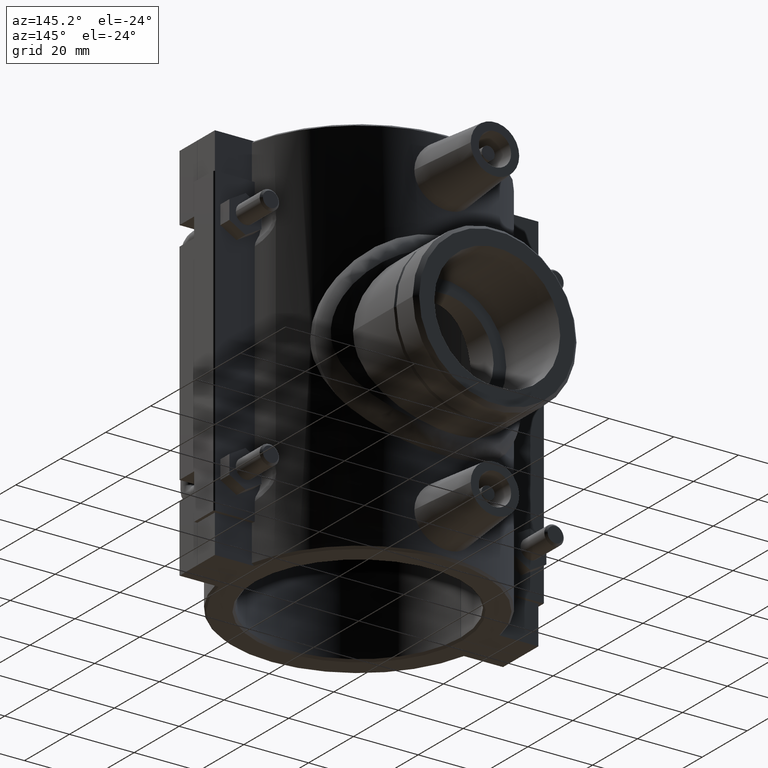
[diagram: clean part render]
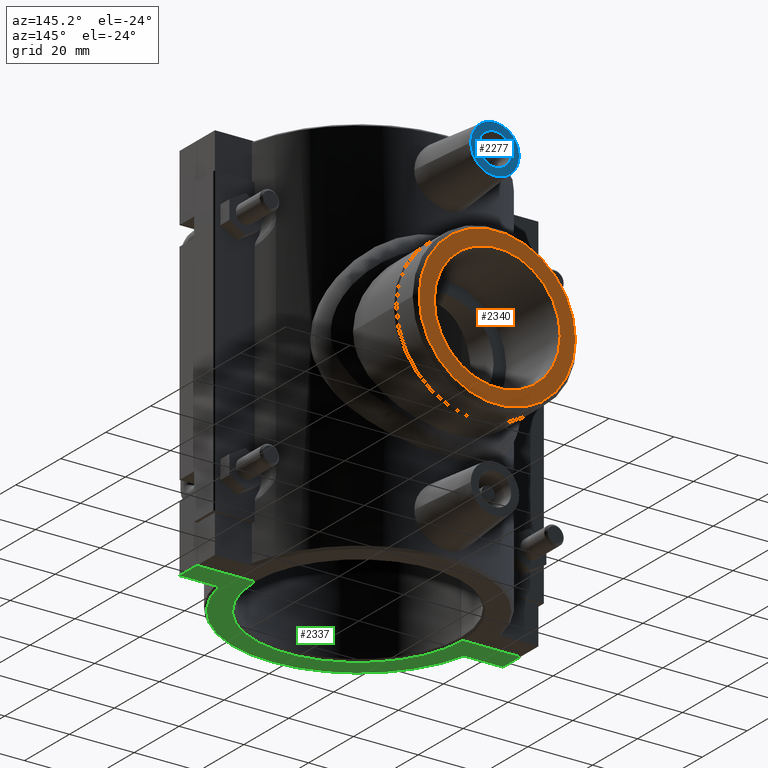
[diagram: same view with three faces highlighted in distinct colors, each labeled with its STEP entity id]
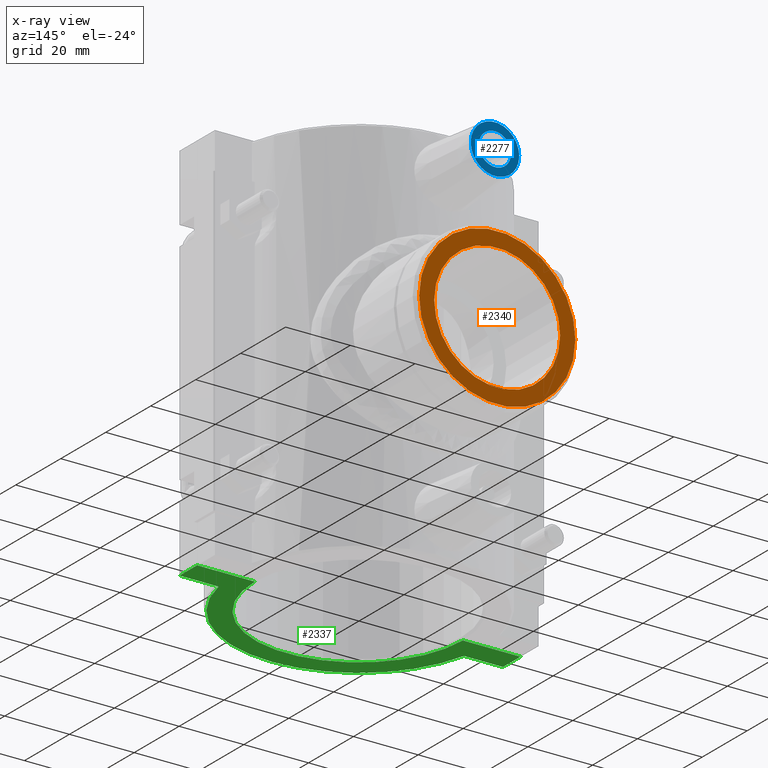
[diagram: x-ray of the same camera — body ghosted, the three highlighted faces saturated]
A machine part, auxiliary view with three faces highlighted in distinct colors.
The next image is the same camera in x-ray (body ghosted, the three faces saturated) — at least one of them is partly hidden behind the body in this view.
Their STEP definitions:

[orange] entity #2340 — the highlighted planar face has unit normal (0, 1, 0).
#125=FACE_BOUND('',#453,.T.);
#276=FACE_OUTER_BOUND('',#452,.T.);
#452=EDGE_LOOP('',(#1988));
#453=EDGE_LOOP('',(#1989));
#946=CIRCLE('',#2533,24.15024);
#949=CIRCLE('',#2538,19.476);
#1151=VERTEX_POINT('',#4292);
#1154=VERTEX_POINT('',#4300);
#1447=EDGE_CURVE('',#1151,#1151,#946,.T.);
#1450=EDGE_CURVE('',#1154,#1154,#949,.T.);
#1988=ORIENTED_EDGE('',*,*,#1447,.F.);
#1989=ORIENTED_EDGE('',*,*,#1450,.T.);
#2221=PLANE('',#2537);
#2340=ADVANCED_FACE('',(#276,#125),#2221,.T.);
#2533=AXIS2_PLACEMENT_3D('',#4293,#3058,#3059);
#2537=AXIS2_PLACEMENT_3D('',#4299,#3066,#3067);
#2538=AXIS2_PLACEMENT_3D('',#4301,#3068,#3069);
#3058=DIRECTION('center_axis',(0.,-1.,0.));
#3059=DIRECTION('ref_axis',(1.,0.,0.));
#3066=DIRECTION('center_axis',(0.,1.,0.));
#3067=DIRECTION('ref_axis',(0.,0.,1.));
#3068=DIRECTION('center_axis',(0.,-1.,0.));
#3069=DIRECTION('ref_axis',(-1.,0.,0.));
#4292=CARTESIAN_POINT('',(-24.15024,61.5,-2.95755141146404E-15));
#4293=CARTESIAN_POINT('Origin',(0.,61.5,0.));
#4299=CARTESIAN_POINT('Origin',(1.4277148677771E-15,61.5,5.84663319812501E-16));
#4300=CARTESIAN_POINT('',(19.476,61.5,-2.38512210601939E-15));
#4301=CARTESIAN_POINT('Origin',(0.,61.5,0.));

[blue] entity #2277 — the highlighted planar face has unit normal (0, -1, 0).
#99=FACE_BOUND('',#364,.T.);
#213=FACE_OUTER_BOUND('',#363,.T.);
#363=EDGE_LOOP('',(#1693));
#364=EDGE_LOOP('',(#1694));
#903=CIRCLE('',#2429,5.);
#904=CIRCLE('',#2432,7.5);
#1063=VERTEX_POINT('',#3689);
#1064=VERTEX_POINT('',#3693);
#1313=EDGE_CURVE('',#1063,#1063,#903,.T.);
#1314=EDGE_CURVE('',#1064,#1064,#904,.T.);
#1693=ORIENTED_EDGE('',*,*,#1314,.T.);
#1694=ORIENTED_EDGE('',*,*,#1313,.T.);
#2185=PLANE('',#2433);
#2277=ADVANCED_FACE('',(#213,#99),#2185,.F.);
#2429=AXIS2_PLACEMENT_3D('',#3690,#2783,#2784);
#2432=AXIS2_PLACEMENT_3D('',#3694,#2789,#2790);
#2433=AXIS2_PLACEMENT_3D('',#3730,#2791,#2792);
#2783=DIRECTION('center_axis',(0.,-1.,0.));
#2784=DIRECTION('ref_axis',(-1.,0.,0.));
#2789=DIRECTION('center_axis',(0.,1.,0.));
#2790=DIRECTION('ref_axis',(1.,0.,0.));
#2791=DIRECTION('center_axis',(0.,-1.,0.));
#2792=DIRECTION('ref_axis',(0.,0.,-1.));
#3689=CARTESIAN_POINT('',(5.,60.5,47.2));
#3690=CARTESIAN_POINT('Origin',(0.,60.5,47.2));
#3693=CARTESIAN_POINT('',(-7.5,60.5,47.2));
#3694=CARTESIAN_POINT('Origin',(0.,60.5,47.2));
#3730=CARTESIAN_POINT('Origin',(7.65404249467095E-17,60.5,47.2));

[green] entity #2337 — the highlighted planar face has unit normal (0, 0, 1).
#273=FACE_OUTER_BOUND('',#447,.T.);
#447=EDGE_LOOP('',(#1976,#1977,#1978,#1979,#1980,#1981,#1982,#1983));
#638=LINE('',#4040,#829);
#643=LINE('',#4057,#834);
#667=LINE('',#4256,#858);
#668=LINE('',#4287,#859);
#669=LINE('',#4289,#860);
#670=LINE('',#4290,#861);
#829=VECTOR('',#2935,12.063745572342);
#834=VECTOR('',#2942,7.825);
#858=VECTOR('',#3028,17.8700389044742);
#859=VECTOR('',#3053,17.8700389044742);
#860=VECTOR('',#3054,7.82500000000001);
#861=VECTOR('',#3055,12.063745572342);
#941=CIRCLE('',#2523,38.745);
#944=CIRCLE('',#2529,32.13);
#1111=VERTEX_POINT('',#4037);
#1112=VERTEX_POINT('',#4039);
#1117=VERTEX_POINT('',#4055);
#1143=VERTEX_POINT('',#4252);
#1144=VERTEX_POINT('',#4260);
#1148=VERTEX_POINT('',#4279);
#1149=VERTEX_POINT('',#4286);
#1150=VERTEX_POINT('',#4288);
#1382=EDGE_CURVE('',#1111,#1112,#638,.T.);
#1389=EDGE_CURVE('',#1111,#1117,#643,.T.);
#1433=EDGE_CURVE('',#1117,#1143,#667,.T.);
#1436=EDGE_CURVE('',#1112,#1144,#941,.T.);
#1442=EDGE_CURVE('',#1148,#1143,#944,.T.);
#1444=EDGE_CURVE('',#1148,#1149,#668,.T.);
#1445=EDGE_CURVE('',#1149,#1150,#669,.T.);
#1446=EDGE_CURVE('',#1150,#1144,#670,.T.);
#1976=ORIENTED_EDGE('',*,*,#1382,.F.);
#1977=ORIENTED_EDGE('',*,*,#1389,.T.);
#1978=ORIENTED_EDGE('',*,*,#1433,.T.);
#1979=ORIENTED_EDGE('',*,*,#1442,.F.);
#1980=ORIENTED_EDGE('',*,*,#1444,.T.);
#1981=ORIENTED_EDGE('',*,*,#1445,.T.);
#1982=ORIENTED_EDGE('',*,*,#1446,.T.);
#1983=ORIENTED_EDGE('',*,*,#1436,.F.);
#2220=PLANE('',#2531);
#2337=ADVANCED_FACE('',(#273),#2220,.F.);
#2523=AXIS2_PLACEMENT_3D('',#4264,#3035,#3036);
#2529=AXIS2_PLACEMENT_3D('',#4283,#3047,#3048);
#2531=AXIS2_PLACEMENT_3D('',#4285,#3051,#3052);
#2935=DIRECTION('',(1.,0.,0.));
#2942=DIRECTION('',(0.,1.,0.));
#3028=DIRECTION('',(1.,0.,0.));
#3035=DIRECTION('center_axis',(0.,0.,1.));
#3036=DIRECTION('ref_axis',(1.,0.,0.));
#3047=DIRECTION('center_axis',(0.,0.,-1.));
#3048=DIRECTION('ref_axis',(-1.,0.,0.));
#3051=DIRECTION('center_axis',(0.,0.,1.));
#3052=DIRECTION('ref_axis',(1.,0.,0.));
#3053=DIRECTION('',(1.,0.,0.));
#3054=DIRECTION('',(0.,-1.,0.));
#3055=DIRECTION('',(-1.,0.,0.));
#4037=CARTESIAN_POINT('',(-50.,-7.875,-59.));
#4039=CARTESIAN_POINT('',(-37.936254427658,-7.875,-59.));
#4040=CARTESIAN_POINT('',(-47.4254443643164,-7.875,-59.));
#4055=CARTESIAN_POINT('',(-50.,-0.05,-59.));
#4057=CARTESIAN_POINT('',(-50.,7.875,-59.));
#4252=CARTESIAN_POINT('',(-32.1299610955258,-0.05,-59.));
#4256=CARTESIAN_POINT('',(-47.4254443643164,-0.05,-59.));
#4260=CARTESIAN_POINT('',(37.936254427658,-7.87500000000001,-59.));
#4264=CARTESIAN_POINT('Origin',(0.,0.,-59.));
#4279=CARTESIAN_POINT('',(32.1299610955258,-0.05,-59.));
#4283=CARTESIAN_POINT('Origin',(0.,0.,-59.));
#4285=CARTESIAN_POINT('Origin',(-44.8508887286327,1.77127957271819E-16,
-59.));
#4286=CARTESIAN_POINT('',(50.,-0.05,-59.));
#4287=CARTESIAN_POINT('',(-47.4254443643164,-0.05,-59.));
#4288=CARTESIAN_POINT('',(50.,-7.87500000000001,-59.));
#4289=CARTESIAN_POINT('',(50.,-7.87500000000001,-59.));
#4290=CARTESIAN_POINT('',(38.5794634488351,-7.87500000000001,-59.));